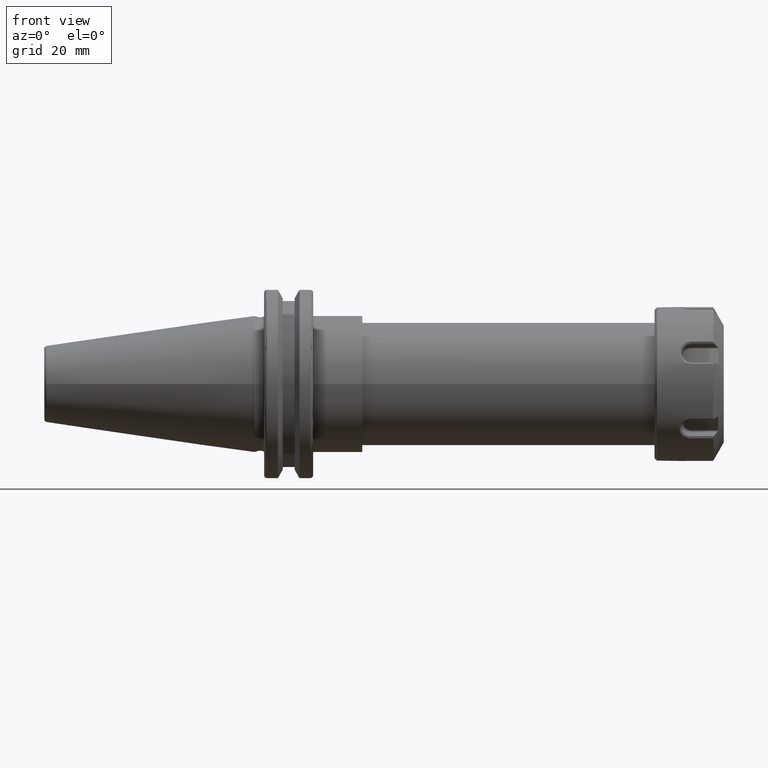
[diagram: clean part render]
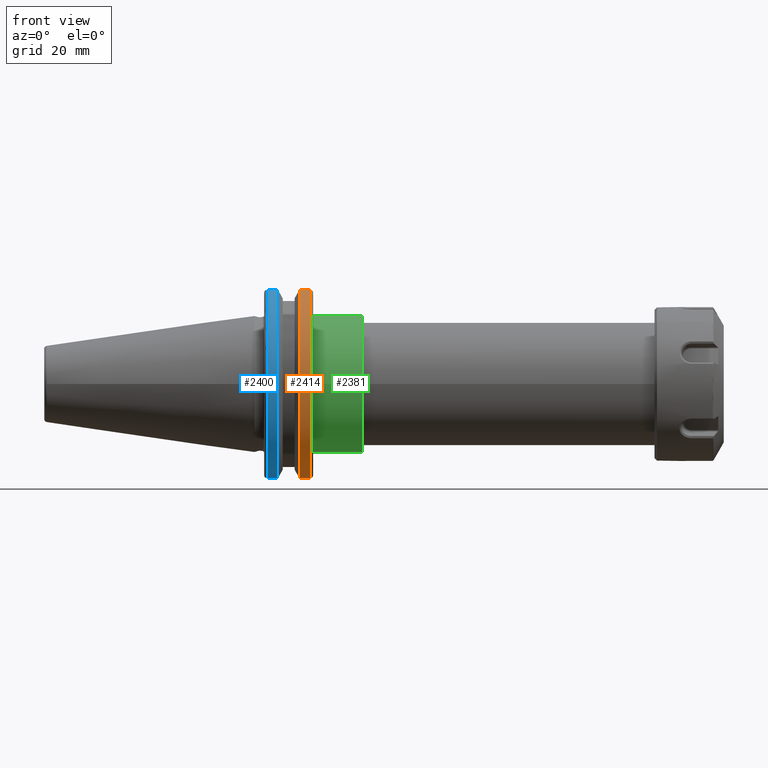
[diagram: same view with three faces highlighted in distinct colors, each labeled with its STEP entity id]
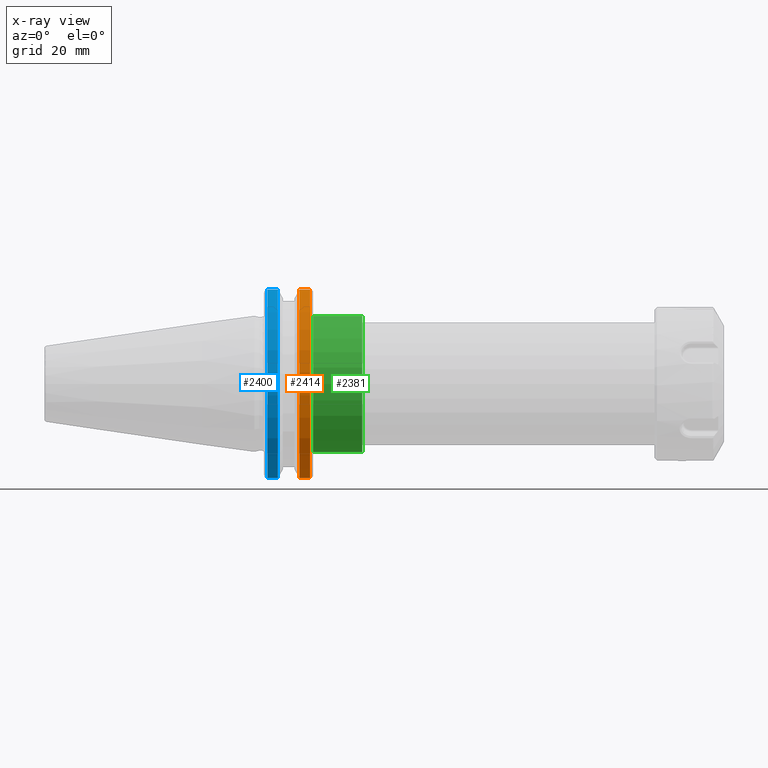
[diagram: x-ray of the same camera — body ghosted, the three highlighted faces saturated]
A machine part, front view with three faces highlighted in distinct colors.
The next image is the same camera in x-ray (body ghosted, the three faces saturated) — at least one of them is partly hidden behind the body in this view.
Their STEP definitions:

[orange] entity #2414 — the highlighted cylindrical surface (partial cylindrical patch) has radius 31.75 mm, axis along (1, 0, 0).
#319=CYLINDRICAL_SURFACE('',#2664,31.75);
#381=FACE_OUTER_BOUND('',#530,.T.);
#530=EDGE_LOOP('',(#1843,#1844,#1845,#1846));
#706=LINE('',#3858,#860);
#707=LINE('',#3864,#861);
#860=VECTOR('',#3042,10.);
#861=VECTOR('',#3045,10.);
#975=CIRCLE('',#2636,31.75);
#985=CIRCLE('',#2665,31.75);
#1112=VERTEX_POINT('',#3675);
#1113=VERTEX_POINT('',#3684);
#1147=VERTEX_POINT('',#3857);
#1148=VERTEX_POINT('',#3863);
#1354=EDGE_CURVE('',#1112,#1113,#975,.T.);
#1407=EDGE_CURVE('',#1113,#1147,#706,.T.);
#1409=EDGE_CURVE('',#1148,#1112,#707,.T.);
#1410=EDGE_CURVE('',#1148,#1147,#985,.T.);
#1843=ORIENTED_EDGE('',*,*,#1354,.F.);
#1844=ORIENTED_EDGE('',*,*,#1409,.F.);
#1845=ORIENTED_EDGE('',*,*,#1410,.T.);
#1846=ORIENTED_EDGE('',*,*,#1407,.F.);
#2414=ADVANCED_FACE('',(#381),#319,.T.);
#2636=AXIS2_PLACEMENT_3D('',#3685,#2960,#2961);
#2664=AXIS2_PLACEMENT_3D('',#3862,#3043,#3044);
#2665=AXIS2_PLACEMENT_3D('',#3865,#3046,#3047);
#2960=DIRECTION('center_axis',(1.,0.,0.));
#2961=DIRECTION('ref_axis',(0.,-1.,1.60812264967664E-16));
#3042=DIRECTION('',(-1.,0.,0.));
#3043=DIRECTION('center_axis',(1.,0.,0.));
#3044=DIRECTION('ref_axis',(0.,-1.,1.22464679914735E-16));
#3045=DIRECTION('',(1.,0.,0.));
#3046=DIRECTION('center_axis',(1.,0.,0.));
#3047=DIRECTION('ref_axis',(0.,0.,-1.));
#3675=CARTESIAN_POINT('',(18.05,-8.67204822802685,30.5427254764662));
#3684=CARTESIAN_POINT('',(18.05,-8.67204822802685,-30.5427254764662));
#3685=CARTESIAN_POINT('Origin',(18.05,0.,0.));
#3857=CARTESIAN_POINT('',(14.6531667690756,-8.67204822802685,-30.5427254764662));
#3858=CARTESIAN_POINT('',(16.8515833845378,-8.67204822802685,-30.5427254764662));
#3862=CARTESIAN_POINT('Origin',(16.8515833845378,0.,0.));
#3863=CARTESIAN_POINT('',(14.6531667690756,-8.67204822802685,30.5427254764662));
#3864=CARTESIAN_POINT('',(16.8515833845378,-8.67204822802685,30.5427254764662));
#3865=CARTESIAN_POINT('Origin',(14.6531667690756,0.,0.));

[blue] entity #2400 — the highlighted cylindrical surface (partial cylindrical patch) has radius 31.75 mm, axis along (1, 0, 0).
#318=CYLINDRICAL_SURFACE('',#2642,31.75);
#367=FACE_OUTER_BOUND('',#515,.T.);
#515=EDGE_LOOP('',(#1777,#1778,#1779,#1780));
#692=LINE('',#3768,#846);
#693=LINE('',#3774,#847);
#846=VECTOR('',#2984,10.);
#847=VECTOR('',#2987,10.);
#976=CIRCLE('',#2640,31.75);
#977=CIRCLE('',#2643,31.75);
#1128=VERTEX_POINT('',#3747);
#1129=VERTEX_POINT('',#3756);
#1130=VERTEX_POINT('',#3767);
#1131=VERTEX_POINT('',#3773);
#1375=EDGE_CURVE('',#1128,#1129,#976,.T.);
#1377=EDGE_CURVE('',#1129,#1130,#692,.T.);
#1379=EDGE_CURVE('',#1131,#1128,#693,.T.);
#1380=EDGE_CURVE('',#1130,#1131,#977,.T.);
#1777=ORIENTED_EDGE('',*,*,#1375,.F.);
#1778=ORIENTED_EDGE('',*,*,#1379,.F.);
#1779=ORIENTED_EDGE('',*,*,#1380,.F.);
#1780=ORIENTED_EDGE('',*,*,#1377,.F.);
#2400=ADVANCED_FACE('',(#367),#318,.T.);
#2640=AXIS2_PLACEMENT_3D('',#3757,#2980,#2981);
#2642=AXIS2_PLACEMENT_3D('',#3772,#2985,#2986);
#2643=AXIS2_PLACEMENT_3D('',#3775,#2988,#2989);
#2980=DIRECTION('center_axis',(-1.,0.,0.));
#2981=DIRECTION('ref_axis',(0.,-1.,1.60812264967664E-16));
#2984=DIRECTION('',(1.,0.,0.));
#2985=DIRECTION('center_axis',(1.,0.,0.));
#2986=DIRECTION('ref_axis',(0.,-1.,1.22464679914735E-16));
#2987=DIRECTION('',(-1.,0.,0.));
#2988=DIRECTION('center_axis',(1.,0.,0.));
#2989=DIRECTION('ref_axis',(0.,0.,-1.));
#3747=CARTESIAN_POINT('',(4.175,-8.67204822802685,-30.5427254764662));
#3756=CARTESIAN_POINT('',(4.175,-8.67204822802685,30.5427254764662));
#3757=CARTESIAN_POINT('Origin',(4.175,0.,0.));
#3767=CARTESIAN_POINT('',(7.60083323092435,-8.67204822802685,30.5427254764662));
#3768=CARTESIAN_POINT('',(5.38791661546218,-8.67204822802685,30.5427254764662));
#3772=CARTESIAN_POINT('Origin',(5.38791661546218,0.,0.));
#3773=CARTESIAN_POINT('',(7.60083323092435,-8.67204822802685,-30.5427254764662));
#3774=CARTESIAN_POINT('',(5.38791661546218,-8.67204822802685,-30.5427254764662));
#3775=CARTESIAN_POINT('Origin',(7.60083323092435,0.,0.));

[green] entity #2381 — the highlighted cylindrical surface (bore or boss wall) has radius 22.225 mm, axis along (1, 0, 0).
#314=CYLINDRICAL_SURFACE('',#2604,22.225);
#348=FACE_OUTER_BOUND('',#491,.T.);
#491=EDGE_LOOP('',(#1657,#1658,#1659,#1660));
#648=LINE('',#3511,#802);
#802=VECTOR('',#2868,22.225);
#958=CIRCLE('',#2605,22.225);
#959=CIRCLE('',#2606,22.225);
#1063=VERTEX_POINT('',#3508);
#1064=VERTEX_POINT('',#3510);
#1294=EDGE_CURVE('',#1063,#1063,#958,.T.);
#1295=EDGE_CURVE('',#1063,#1064,#648,.T.);
#1296=EDGE_CURVE('',#1064,#1064,#959,.T.);
#1657=ORIENTED_EDGE('',*,*,#1294,.F.);
#1658=ORIENTED_EDGE('',*,*,#1295,.T.);
#1659=ORIENTED_EDGE('',*,*,#1296,.F.);
#1660=ORIENTED_EDGE('',*,*,#1295,.F.);
#2381=ADVANCED_FACE('',(#348),#314,.T.);
#2604=AXIS2_PLACEMENT_3D('',#3507,#2864,#2865);
#2605=AXIS2_PLACEMENT_3D('',#3509,#2866,#2867);
#2606=AXIS2_PLACEMENT_3D('',#3512,#2869,#2870);
#2864=DIRECTION('center_axis',(1.,0.,0.));
#2865=DIRECTION('ref_axis',(0.,1.,0.));
#2866=DIRECTION('center_axis',(1.,0.,0.));
#2867=DIRECTION('ref_axis',(0.,0.,-1.));
#2868=DIRECTION('',(-1.,0.,0.));
#2869=DIRECTION('center_axis',(-1.,0.,0.));
#2870=DIRECTION('ref_axis',(0.,1.,0.));
#3507=CARTESIAN_POINT('Origin',(27.025,0.,0.));
#3508=CARTESIAN_POINT('',(35.,-22.225,-2.72177751110499E-15));
#3509=CARTESIAN_POINT('Origin',(35.,0.,0.));
#3510=CARTESIAN_POINT('',(19.05,-22.225,-2.72177751110499E-15));
#3511=CARTESIAN_POINT('',(27.025,-22.225,-2.72177751110499E-15));
#3512=CARTESIAN_POINT('Origin',(19.05,0.,0.));